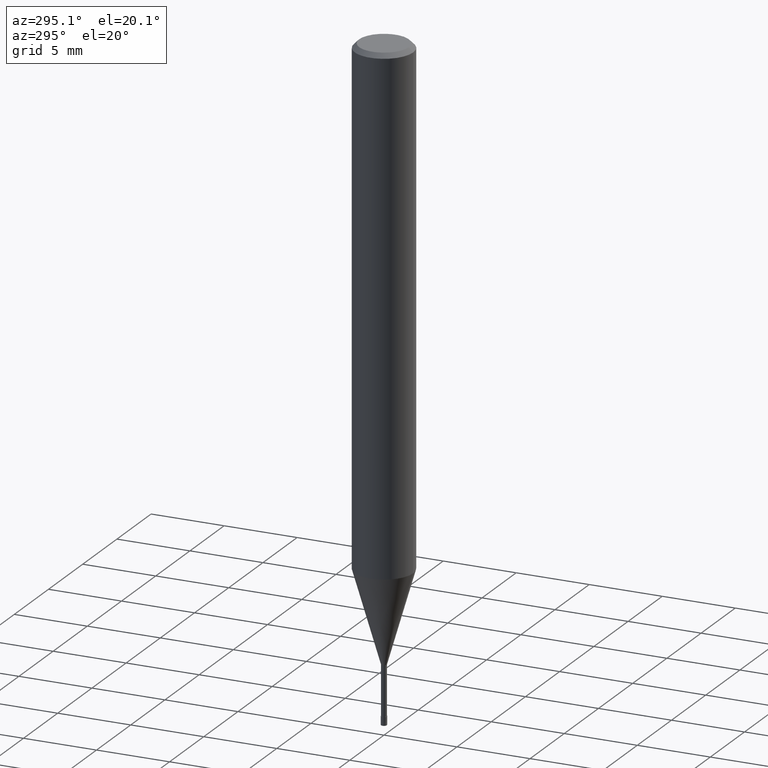
[diagram: clean part render]
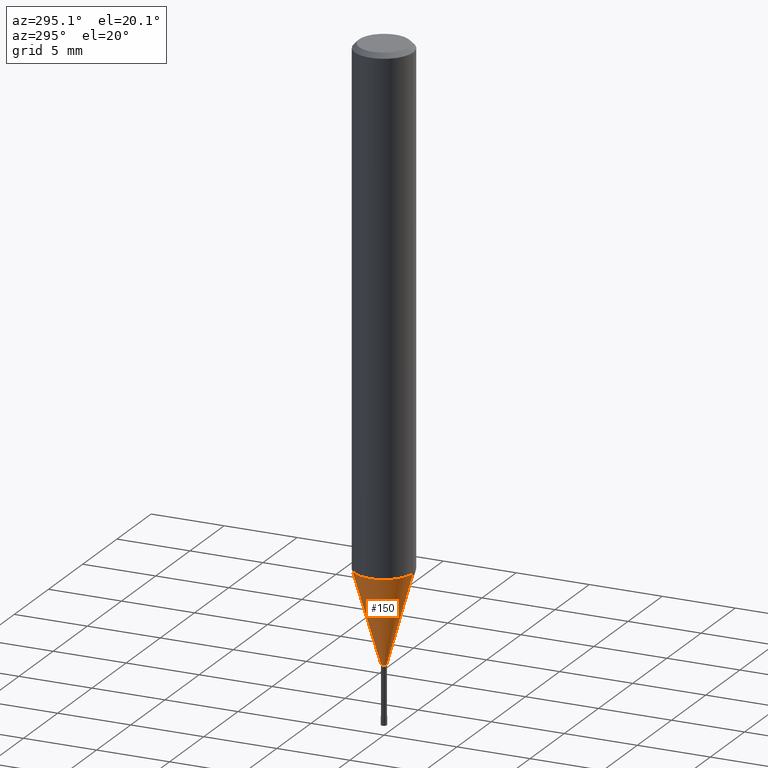
[diagram: same view with one face highlighted and labeled with its STEP entity id]
A machine part, auxiliary view. The second image highlights one B-rep face of the part: STEP entity #150.
In plain terms, the highlighted conical surface has half-angle 16.001 deg.
Its self-contained STEP definition (entity closure, byte-faithful):
#124=VERTEX_POINT('',#266);
#126=EDGE_CURVE('',#124,#176,#268,.T.);
#136=EDGE_CURVE('',#178,#184,#279,.T.);
#138=EDGE_CURVE('',#176,#178,#281,.T.);
#150=ADVANCED_FACE('',(#293),#294,.T.);
#176=VERTEX_POINT('',#323);
#178=VERTEX_POINT('',#325);
#182=EDGE_CURVE('',#124,#184,#329,.T.);
#184=VERTEX_POINT('',#331);
#266=CARTESIAN_POINT('',(2.3261397690856E-017,-0.18995,-41.0));
#268=LINE('',#421,#422);
#279=LINE('',#435,#436);
#281=CIRCLE('',#439,1.99995);
#293=FACE_OUTER_BOUND('',#457,.T.);
#294=CONICAL_SURFACE('',#458,1.09495,0.279261921280279);
#323=CARTESIAN_POINT('',(2.44915147732706E-016,-1.99995,-34.688));
#325=CARTESIAN_POINT('',(0.0,1.99995,-34.688));
#329=CIRCLE('',#505,0.18995);
#331=CARTESIAN_POINT('',(0.0,0.18995,-41.0));
#421=CARTESIAN_POINT('',(1.34088272711781E-016,-1.09495,-37.844));
#422=VECTOR('',#592,1.0);
#435=CARTESIAN_POINT('',(-1.34088272711781E-016,1.09495,-37.844));
#436=VECTOR('',#604,1.0);
#439=AXIS2_PLACEMENT_3D('',#605,#606,#607);
#457=EDGE_LOOP('',(#617,#618,#619,#620));
#458=AXIS2_PLACEMENT_3D('',#621,#622,#623);
#505=AXIS2_PLACEMENT_3D('',#666,#667,#668);
#592=DIRECTION('',(3.37558135426109E-017,-0.275646238787252,0.961259148743169));
#604=DIRECTION('',(3.37558135426109E-017,-0.275646238787252,-0.961259148743169));
#605=CARTESIAN_POINT('',(0.0,0.0,-34.688));
#606=DIRECTION('',(0.0,0.0,-1.0));
#607=DIRECTION('',(0.0,1.0,0.0));
#617=ORIENTED_EDGE('',*,*,#136,.T.);
#618=ORIENTED_EDGE('',*,*,#182,.F.);
#619=ORIENTED_EDGE('',*,*,#126,.T.);
#620=ORIENTED_EDGE('',*,*,#138,.T.);
#621=CARTESIAN_POINT('',(0.0,0.0,-37.844));
#622=DIRECTION('',(-0.0,-0.0,1.0));
#623=DIRECTION('',(0.0,1.0,0.0));
#666=CARTESIAN_POINT('',(0.0,0.0,-41.0));
#667=DIRECTION('',(0.0,0.0,-1.0));
#668=DIRECTION('',(0.0,1.0,0.0));